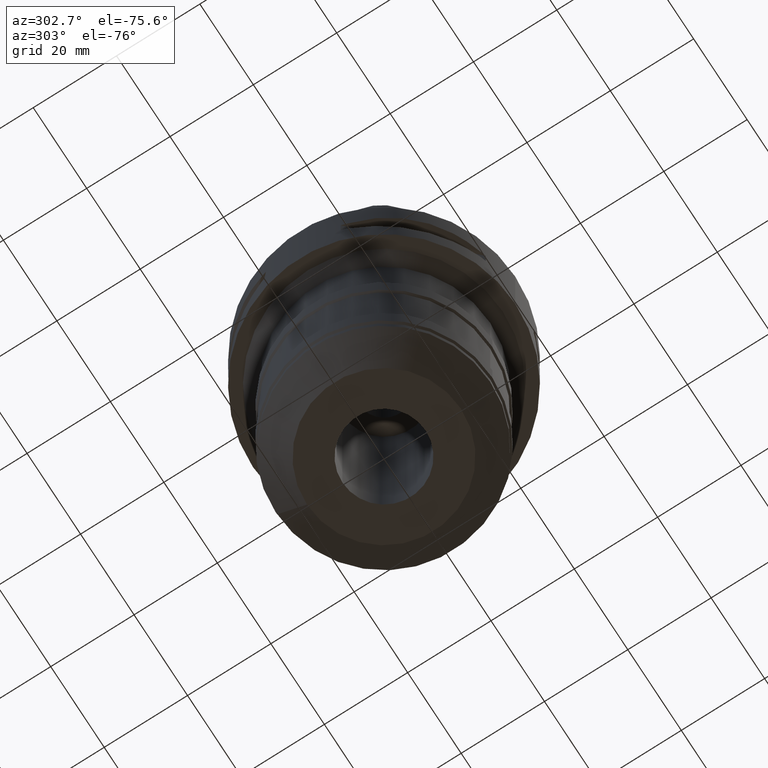
[diagram: clean part render]
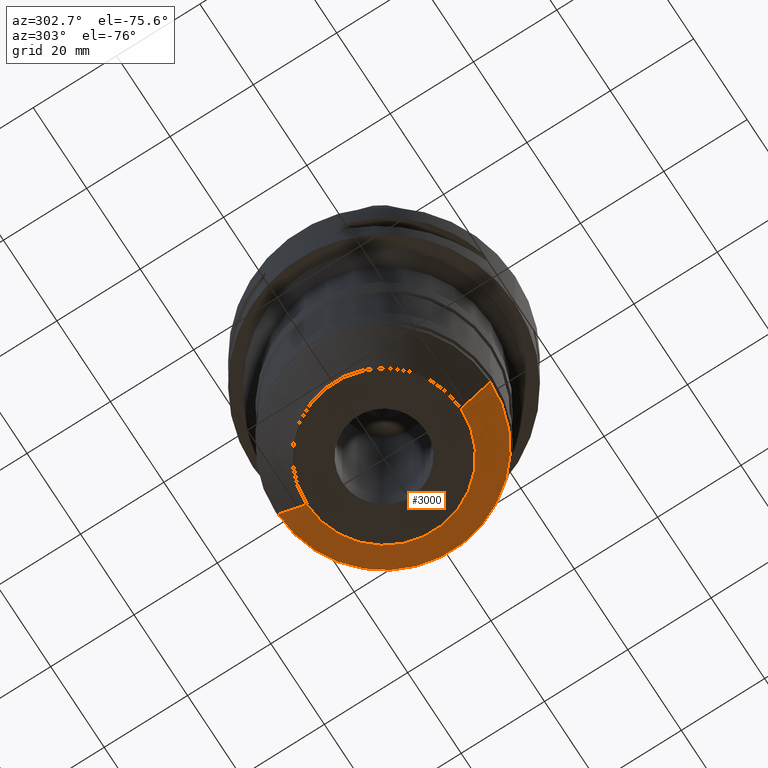
[diagram: same view with one face highlighted and labeled with its STEP entity id]
A machine part, auxiliary view. The second image highlights one B-rep face of the part: STEP entity #3000.
In plain terms, the highlighted conical surface has half-angle 45 deg.
Its self-contained STEP definition (entity closure, byte-faithful):
#839=DIRECTION('',(0.E0,7.071067811865E-1,-7.071067811865E-1));
#840=VECTOR('',#839,9.899494936612E0);
#841=CARTESIAN_POINT('',(0.E0,-2.55E1,-7.3E1));
#842=LINE('',#841,#840);
#846=DIRECTION('',(0.E0,-7.071067811865E-1,-7.071067811865E-1));
#847=VECTOR('',#846,9.899494936612E0);
#848=CARTESIAN_POINT('',(0.E0,2.55E1,-7.3E1));
#849=LINE('',#848,#847);
#853=CARTESIAN_POINT('',(0.E0,0.E0,-7.3E1));
#854=DIRECTION('',(0.E0,0.E0,1.E0));
#855=DIRECTION('',(0.E0,-1.E0,0.E0));
#856=AXIS2_PLACEMENT_3D('',#853,#854,#855);
#861=CARTESIAN_POINT('',(0.E0,0.E0,-8.E1));
#862=DIRECTION('',(0.E0,0.E0,1.E0));
#863=DIRECTION('',(0.E0,-1.E0,0.E0));
#864=AXIS2_PLACEMENT_3D('',#861,#862,#863);
#1818=CARTESIAN_POINT('',(0.E0,2.55E1,-7.3E1));
#1819=VERTEX_POINT('',#1818);
#1820=CARTESIAN_POINT('',(0.E0,-2.55E1,-7.3E1));
#1821=VERTEX_POINT('',#1820);
#1822=CARTESIAN_POINT('',(0.E0,1.85E1,-8.E1));
#1823=VERTEX_POINT('',#1822);
#1824=CARTESIAN_POINT('',(0.E0,-1.85E1,-8.E1));
#1825=VERTEX_POINT('',#1824);
#2988=CARTESIAN_POINT('',(0.E0,0.E0,-7.65E1));
#2989=DIRECTION('',(0.E0,0.E0,1.E0));
#2990=DIRECTION('',(0.E0,1.E0,0.E0));
#2991=AXIS2_PLACEMENT_3D('',#2988,#2989,#2990);
#2992=CONICAL_SURFACE('',#2991,2.2E1,4.5E1);
#2993=ORIENTED_EDGE('',*,*,#2978,.T.);
#2995=ORIENTED_EDGE('',*,*,#2994,.F.);
#2996=ORIENTED_EDGE('',*,*,#2981,.F.);
#2997=ORIENTED_EDGE('',*,*,#2952,.T.);
#2998=EDGE_LOOP('',(#2993,#2995,#2996,#2997));
#2999=FACE_OUTER_BOUND('',#2998,.F.);
#857=CIRCLE('',#856,2.55E1);
#865=CIRCLE('',#864,1.85E1);
#2952=EDGE_CURVE('',#1821,#1819,#857,.T.);
#2978=EDGE_CURVE('',#1819,#1823,#849,.T.);
#2981=EDGE_CURVE('',#1821,#1825,#842,.T.);
#2994=EDGE_CURVE('',#1825,#1823,#865,.T.);
#3000=ADVANCED_FACE('',(#2999),#2992,.T.);